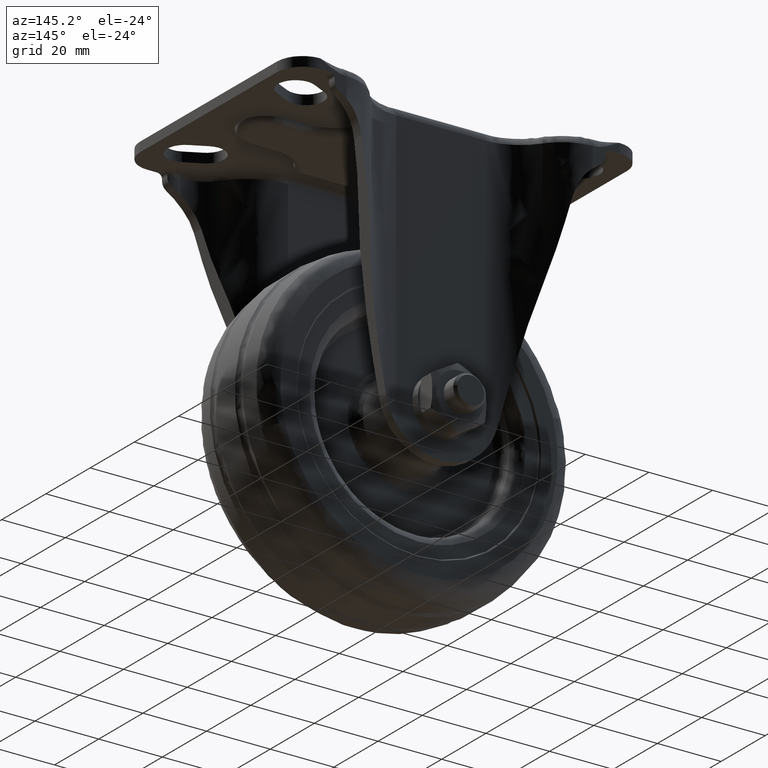
[diagram: clean part render]
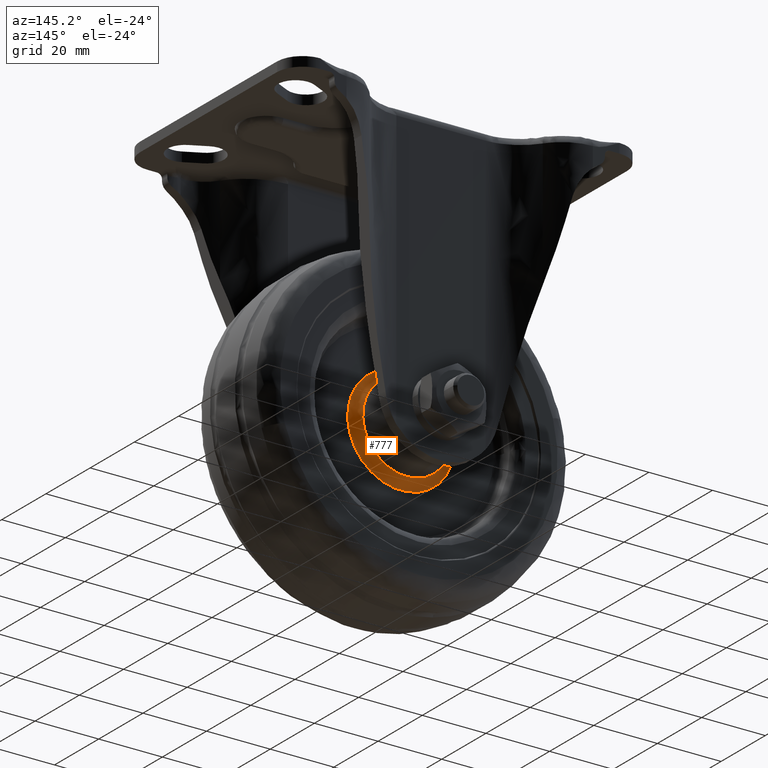
[diagram: same view with one face highlighted and labeled with its STEP entity id]
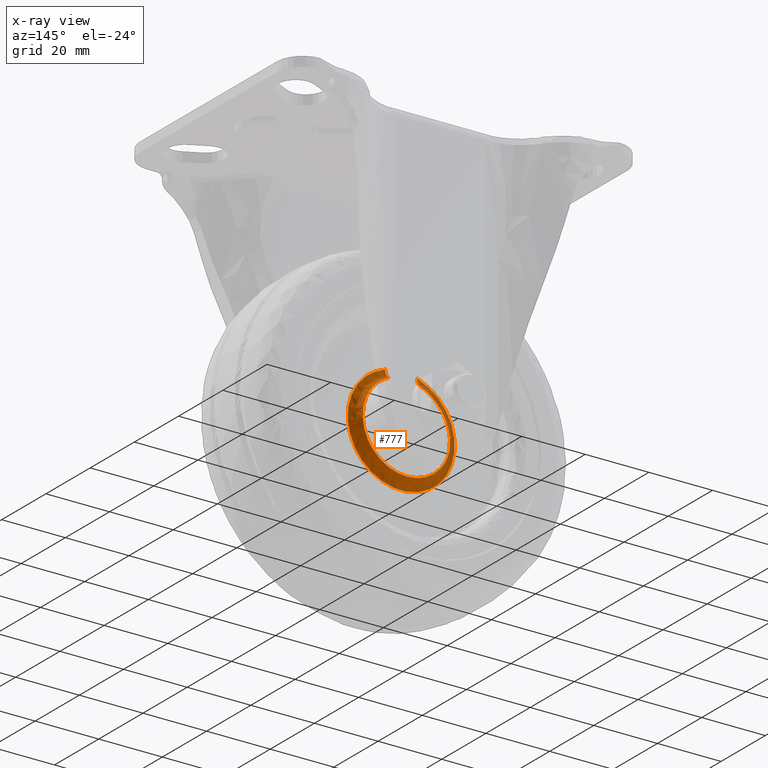
[diagram: x-ray of the same camera — body ghosted, the highlighted face saturated]
A machine part, auxiliary view. The second image highlights one B-rep face of the part: STEP entity #777.
The next image is the same camera in x-ray: the body ghosted, the highlighted face saturated — about 16% of this face is hidden behind the body in this view.
In plain terms, the highlighted face is a freeform B-spline surface patch.
Its self-contained STEP definition (entity closure, byte-faithful):
#569=CARTESIAN_POINT('',(-4.208241807593381,8.006280760442236,16.481419432548567));
#570=CARTESIAN_POINT('',(-4.385973969845072,8.006280760442236,16.431890667955148));
#571=CARTESIAN_POINT('',(-18.859627438471801,8.006280760442236,12.398506015608566));
#572=CARTESIAN_POINT('',(-16.849371815837227,8.006280760442236,-2.303814948342509));
#573=CARTESIAN_POINT('',(-14.839116193202653,8.006280760442236,-17.006135912293573));
#574=CARTESIAN_POINT('',(-2.082583E-015,8.006280760442236,-17.006135912293583));
#575=CARTESIAN_POINT('',(14.839116193202653,8.006280760442236,-17.006135912293587));
#576=CARTESIAN_POINT('',(16.849371815837227,8.006280760442236,-2.303814948342519));
#577=CARTESIAN_POINT('',(18.859627438471801,8.006280760442236,12.398506015608561));
#578=CARTESIAN_POINT('',(4.385973969845074,8.006280760442236,16.431890667955148));
#579=CARTESIAN_POINT('',(4.208241807593381,8.006280760442236,16.481419432548577));
#580=CARTESIAN_POINT('',(-3.477263548884142,7.814831864009457,13.618572195895904));
#581=CARTESIAN_POINT('',(-3.624123353410347,7.814831864009459,13.577646656058533));
#582=CARTESIAN_POINT('',(-15.583680319652821,7.814831864009456,10.244867297960230));
#583=CARTESIAN_POINT('',(-13.922609278555937,7.814831864009458,-1.903637257955260));
#584=CARTESIAN_POINT('',(-12.261538237459037,7.814831864009456,-14.052141813870747));
#585=CARTESIAN_POINT('',(-1.720835E-015,7.814831864009458,-14.052141813870755));
#586=CARTESIAN_POINT('',(12.261538237459034,7.814831864009456,-14.052141813870753));
#587=CARTESIAN_POINT('',(13.922609278555932,7.814831864009458,-1.903637257955269));
#588=CARTESIAN_POINT('',(15.583680319652824,7.814831864009456,10.244867297960225));
#589=CARTESIAN_POINT('',(3.624123353410349,7.814831864009458,13.577646656058528));
#590=CARTESIAN_POINT('',(3.477263548884142,7.814831864009459,13.618572195895904));
#591=CARTESIAN_POINT('',(-3.420128879744514,10.766005135978872,13.394806539784220));
#592=CARTESIAN_POINT('',(-3.564575641306459,10.766005135978872,13.354553444570362));
#593=CARTESIAN_POINT('',(-15.327625980795817,10.766005135978871,10.076534746187205));
#594=CARTESIAN_POINT('',(-13.693847879395996,10.766005135978872,-1.872358598617691));
#595=CARTESIAN_POINT('',(-12.060069777996157,10.766005135978871,-13.821251943422586));
#596=CARTESIAN_POINT('',(-1.692560E-015,10.766005135978872,-13.821251943422594));
#597=CARTESIAN_POINT('',(12.060069777996157,10.766005135978871,-13.821251943422590));
#598=CARTESIAN_POINT('',(13.693847879395996,10.766005135978872,-1.872358598617701));
#599=CARTESIAN_POINT('',(15.327625980795817,10.766005135978871,10.076534746187201));
#600=CARTESIAN_POINT('',(3.564575641306460,10.766005135978872,13.354553444570362));
#601=CARTESIAN_POINT('',(3.420128879744515,10.766005135978871,13.394806539784231));
#609=(BOUNDED_SURFACE()B_SPLINE_SURFACE(2,2,((#569,#580,#591),(#570,#581,#592),(#571,#582,#593),(#572,#583,#594),(#573,#584,#595),(#574,#585,#596),(#575,#586,#597),(#576,#587,#598),(#577,#588,#599),(#578,#589,#600),(#579,#590,#601)),.UNSPECIFIED.,.F.,.F.,.U.)B_SPLINE_SURFACE_WITH_KNOTS((3,1,2,2,2,1,3),(3,3),(0.0,0.426100916373233,25.931937540321542,51.437774164269847,76.943610788218152,102.449447412166510,102.875548328539690),(0.0,4.924340877950315),.UNSPECIFIED.)GEOMETRIC_REPRESENTATION_ITEM()RATIONAL_B_SPLINE_SURFACE(((0.925006459965438,0.659513698737077,0.928047433128488),(0.921228094779907,0.656819789335858,0.924256646508484),(0.691281792787238,0.492872030372355,0.693554392461894),(0.917449729594376,0.654125879934640,0.920465859888481),(0.691281792787238,0.492872030372355,0.693554392461894),(0.917449729594376,0.654125879934640,0.920465859888481),(0.691281792787238,0.492872030372355,0.693554392461894),(0.917449729594376,0.654125879934640,0.920465859888481),(0.691281792787238,0.492872030372355,0.693554392461894),(0.921228094779907,0.656819789335858,0.924256646508484),(0.925006459965438,0.659513698737077,0.928047433128488)))REPRESENTATION_ITEM('')SURFACE());
#610=CARTESIAN_POINT('',(-5.0,10.573671367128719,12.908016292278960));
#611=VERTEX_POINT('',#610);
#612=CARTESIAN_POINT('',(-10.807057311222660,10.573671367128350,-8.650089707280159));
#613=VERTEX_POINT('',#612);
#614=CARTESIAN_POINT('',(-4.999999999999997,10.573671367128719,12.908016292278971));
#615=CARTESIAN_POINT('',(-15.718890127530329,10.573671367128718,8.755985287642139));
#616=CARTESIAN_POINT('',(-13.606922054357060,10.573671367128719,-2.543287161831303));
#617=CARTESIAN_POINT('',(-12.970753688048202,10.573671367128718,-5.946861195912104));
#618=CARTESIAN_POINT('',(-10.807057311222623,10.573671367128716,-8.650089707280131));
#626=(BOUNDED_CURVE()B_SPLINE_CURVE(2,(#614,#615,#616,#617,#618),.UNSPECIFIED.,.F.,.U.)B_SPLINE_CURVE_WITH_KNOTS((3,2,3),(0.0,0.250000000000000,0.339776084298927),.UNSPECIFIED.)CURVE()GEOMETRIC_REPRESENTATION_ITEM()RATIONAL_B_SPLINE_CURVE((1.0,0.769327633555223,1.0,0.917164552738482,0.893822242247280))REPRESENTATION_ITEM(''));
#627=EDGE_CURVE('',#611,#613,#626,.T.);
#628=ORIENTED_EDGE('',*,*,#627,.T.);
#629=CARTESIAN_POINT('',(10.807057311227860,10.573671367127501,8.650105707273827));
#630=VERTEX_POINT('',#629);
#631=CARTESIAN_POINT('',(-10.807057311222664,10.573671367128352,-8.650089707280159));
#632=CARTESIAN_POINT('',(-6.650942402376769,10.573671367128355,-13.842559611304793));
#633=CARTESIAN_POINT('',(-7.873011E-015,10.573671367128201,-13.842559611304759));
#634=CARTESIAN_POINT('',(11.494953981183821,10.573671367127917,-13.842559611304718));
#635=CARTESIAN_POINT('',(13.606922054357160,10.573671367127650,-2.543287161831241));
#636=CARTESIAN_POINT('',(14.772979479989413,10.573671367127501,3.695254372631172));
#637=CARTESIAN_POINT('',(10.807057311227862,10.573671367127503,8.650105707273827));
#645=(BOUNDED_CURVE()B_SPLINE_CURVE(2,(#631,#632,#633,#634,#635,#636,#637),.UNSPECIFIED.,.F.,.U.)B_SPLINE_CURVE_WITH_KNOTS((3,2,2,3),(0.339776084298927,0.500000000000000,0.750000000000000,0.903933134558067),.UNSPECIFIED.)CURVE()GEOMETRIC_REPRESENTATION_ITEM()RATIONAL_B_SPLINE_CURVE((0.893822242247280,0.852163080816740,1.0,0.769327633555223,1.0,0.857967518308913,0.890843077543988))REPRESENTATION_ITEM(''));
#646=EDGE_CURVE('',#613,#630,#645,.T.);
#647=ORIENTED_EDGE('',*,*,#646,.T.);
#648=CARTESIAN_POINT('',(5.0,10.573671367128719,12.908016292278960));
#649=VERTEX_POINT('',#648);
#650=CARTESIAN_POINT('',(10.807057311227862,10.573671367127503,8.650105707273827));
#651=CARTESIAN_POINT('',(8.477000434482669,10.573671367128110,11.561177819699786));
#652=CARTESIAN_POINT('',(5.0,10.573671367128719,12.908016292278960));
#660=(BOUNDED_CURVE()B_SPLINE_CURVE(2,(#650,#651,#652),.UNSPECIFIED.,.F.,.U.)B_SPLINE_CURVE_WITH_KNOTS((3,3),(0.903933134558067,1.0),.UNSPECIFIED.)CURVE()GEOMETRIC_REPRESENTATION_ITEM()RATIONAL_B_SPLINE_CURVE((0.890843077543988,0.911360115246309,1.0))REPRESENTATION_ITEM(''));
#661=EDGE_CURVE('',#630,#649,#660,.T.);
#662=ORIENTED_EDGE('',*,*,#661,.T.);
#663=CARTESIAN_POINT('',(5.0,8.0,16.051406477737402));
#664=VERTEX_POINT('',#663);
#665=CARTESIAN_POINT('',(5.0,10.573671367128730,12.908016292278990));
#666=CARTESIAN_POINT('',(4.999999999999999,10.392458631741530,12.935915995399951));
#667=CARTESIAN_POINT('',(5.0,10.214475475980761,12.981312196351510));
#668=CARTESIAN_POINT('',(4.999999999999998,9.952432244252542,13.076123291449271));
#669=CARTESIAN_POINT('',(4.999999999999999,9.866854669220324,13.111873131048540));
#670=CARTESIAN_POINT('',(5.000000000000001,9.741369422897163,13.171444352746990));
#671=CARTESIAN_POINT('',(5.0,9.700005467511124,13.192300123328280));
#672=CARTESIAN_POINT('',(5.0,9.618202814483000,13.236001182919210));
#673=CARTESIAN_POINT('',(4.999999999999999,9.577690394608867,13.258893302771840));
#674=CARTESIAN_POINT('',(4.999999999999999,9.378859931261049,13.377468288791260));
#675=CARTESIAN_POINT('',(5.000000000000001,9.230894177773894,13.485705834013411));
#676=CARTESIAN_POINT('',(4.999999999999999,9.024460295187108,13.666762626704671));
#677=CARTESIAN_POINT('',(4.999999999999999,8.958252850653151,13.730253403159010));
#678=CARTESIAN_POINT('',(5.000000000000001,8.831058545678003,13.863527510984570));
#679=CARTESIAN_POINT('',(5.0,8.769811910411997,13.933665818472340));
#680=CARTESIAN_POINT('',(5.000000000000002,8.596898691114209,14.150120608958810));
#681=CARTESIAN_POINT('',(5.0,8.495387407805287,14.302791141223810));
#682=CARTESIAN_POINT('',(4.999999999999998,8.362849899530827,14.543790572034609));
#683=CARTESIAN_POINT('',(4.999999999999998,8.321979947865881,14.626135409243410));
#684=CARTESIAN_POINT('',(4.999999999999997,8.246949410363291,14.794903747958459));
#685=CARTESIAN_POINT('',(4.999999999999999,8.212784726358704,14.881462101575080));
#686=CARTESIAN_POINT('',(5.0,8.122197577945112,15.142548872938480));
#687=CARTESIAN_POINT('',(5.000000000000001,8.076854476398838,15.319983214730190));
#688=CARTESIAN_POINT('',(5.0,8.030997203127880,15.591106326164910));
#689=CARTESIAN_POINT('',(5.0,8.019425650040013,15.682314077488391));
#690=CARTESIAN_POINT('',(5.0,8.007783422095203,15.820408039912500));
#691=CARTESIAN_POINT('',(5.0,8.004853491606177,15.866763642716800));
#692=CARTESIAN_POINT('',(4.999999999999999,8.000964838455374,15.959252521887869));
#693=CARTESIAN_POINT('',(5.0,7.999999999999976,16.005384760992619));
#694=CARTESIAN_POINT('',(5.0,7.999999999999978,16.051406477737402));
#695=B_SPLINE_CURVE_WITH_KNOTS('',3,(#665,#666,#667,#668,#669,#670,#671,#672,#673,#674,#675,#676,#677,#678,#679,#680,#681,#682,#683,#684,#685,#686,#687,#688,#689,#690,#691,#692,#693,#694),.UNSPECIFIED.,.F.,.U.,(4,2,2,2,2,2,2,2,2,2,2,2,2,2,4),(0.0,0.124999999999996,0.187499999999994,0.218749999999993,0.249999999999992,0.374999999999991,0.437499999999992,0.499999999999993,0.624999999999994,0.687499999999994,0.749999999999995,0.874999999999996,0.937499999999997,0.968749999999998,1.0),.UNSPECIFIED.);
#696=EDGE_CURVE('',#649,#664,#695,.T.);
#697=ORIENTED_EDGE('',*,*,#696,.T.);
#698=CARTESIAN_POINT('',(-5.0,8.0,16.051406477737402));
#699=VERTEX_POINT('',#698);
#700=CARTESIAN_POINT('',(-5.0,8.0,16.051406477737402));
#701=CARTESIAN_POINT('',(-5.830879580417482,8.000000000000007,15.792645241937530));
#702=CARTESIAN_POINT('',(-7.452314195347253,8.000000000000004,15.145652148073930));
#703=CARTESIAN_POINT('',(-9.866172231356719,7.999999999999991,13.715505384602650));
#704=CARTESIAN_POINT('',(-11.765321920142270,7.999999999999994,12.093501331199970));
#705=CARTESIAN_POINT('',(-13.447446908723149,8.000000000000030,10.174565978503450));
#706=CARTESIAN_POINT('',(-14.967004606521041,7.999999999999972,7.888968912339227));
#707=CARTESIAN_POINT('',(-16.163235233392999,8.000000000000108,4.999560563699025));
#708=CARTESIAN_POINT('',(-16.740957306334309,7.999999999999797,2.125285732677760));
#709=CARTESIAN_POINT('',(-16.859141727732869,8.000000000000355,-0.301499728008156));
#710=CARTESIAN_POINT('',(-16.659523197579521,7.999999999999587,-2.660413790846179));
#711=CARTESIAN_POINT('',(-16.136661037939049,8.000000000000124,-4.907251237731929));
#712=CARTESIAN_POINT('',(-15.197486883554600,7.999999999999955,-7.348489334201396));
#713=CARTESIAN_POINT('',(-14.013261877363281,8.000000000000133,-9.404449345322814));
#714=CARTESIAN_POINT('',(-12.307188868444101,7.999999999999669,-11.547678209950970));
#715=CARTESIAN_POINT('',(-10.431873823596650,8.000000000000149,-13.290263610909790));
#716=CARTESIAN_POINT('',(-7.871022385686198,7.999999999999930,-14.956386441801710));
#717=CARTESIAN_POINT('',(-5.108300429087904,8.000000000000020,-16.122268423693409));
#718=CARTESIAN_POINT('',(-2.179041338487911,7.999999999999999,-16.748846336401350));
#719=CARTESIAN_POINT('',(0.312440493970403,8.0,-16.859384465981059));
#720=CARTESIAN_POINT('',(2.668885042486320,7.999999999999998,-16.649733129143289));
#721=CARTESIAN_POINT('',(5.101752527892094,7.999999999999996,-16.101062439141081));
#722=CARTESIAN_POINT('',(7.932191919422404,8.000000000000023,-14.943563836371490));
#723=CARTESIAN_POINT('',(10.542412180895850,7.999999999999957,-13.224661163827729));
#724=CARTESIAN_POINT('',(12.779412909887251,8.000000000000178,-11.051371385574740));
#725=CARTESIAN_POINT('',(14.649428386178840,7.999999999999274,-8.475864285374771));
#726=CARTESIAN_POINT('',(15.948188286806920,8.000000000001968,-5.631098452189949));
#727=CARTESIAN_POINT('',(16.628963926792601,7.999999999999175,-2.845004841143759));
#728=CARTESIAN_POINT('',(16.854762736586160,8.000000000000169,-0.488473262706922));
#729=CARTESIAN_POINT('',(16.763498983168489,7.999999999999988,1.939469394198029));
#730=CARTESIAN_POINT('',(16.240883202494970,8.000000000000007,4.697381746584208));
#731=CARTESIAN_POINT('',(15.178122705170541,7.999999999999996,7.434485770632091));
#732=CARTESIAN_POINT('',(13.684245669709110,8.0,9.882817395994662));
#733=CARTESIAN_POINT('',(11.829816046441790,8.0,12.070751804222761));
#734=CARTESIAN_POINT('',(9.710188263896804,8.0,13.820859475633990));
#735=CARTESIAN_POINT('',(7.336483433991420,8.0,15.191837623416269));
#736=CARTESIAN_POINT('',(5.830882134248977,8.0,15.792650439783500));
#737=CARTESIAN_POINT('',(5.0,8.0,16.051406477737402));
#738=B_SPLINE_CURVE_WITH_KNOTS('',3,(#700,#701,#702,#703,#704,#705,#706,#707,#708,#709,#710,#711,#712,#713,#714,#715,#716,#717,#718,#719,#720,#721,#722,#723,#724,#725,#726,#727,#728,#729,#730,#731,#732,#733,#734,#735,#736,#737),.UNSPECIFIED.,.F.,.U.,(4,1,1,1,1,1,1,1,1,1,1,1,1,1,1,1,1,1,1,1,1,1,1,1,1,1,1,1,1,1,1,1,1,1,1,4),(0.000000210871136,2.610727732022582,5.221533677717005,8.391819440560425,10.070202388372779,12.867507016665430,16.597245252060048,19.394539872574679,21.632386175546699,23.870139122112992,26.480894423949721,28.532239395351379,31.702504654534170,33.567372931359429,36.737639550038459,39.348447596160348,42.705188282271500,45.689004435100983,48.299695782156853,50.164525179260913,52.775372895647337,55.759137525857170,59.302370423763051,62.099670608985527,65.083436750605046,68.813202304785591,71.423944294001885,73.661678482534967,75.899521673808238,78.696820497176788,82.053580910996388,84.664400908013491,87.275218505081341,90.631965980168602,92.869820493892377,95.480545488293117),.UNSPECIFIED.);
#739=EDGE_CURVE('',#699,#664,#738,.T.);
#740=ORIENTED_EDGE('',*,*,#739,.F.);
#741=CARTESIAN_POINT('',(-5.0,7.999999999999998,16.051406477737402));
#742=CARTESIAN_POINT('',(-5.000000000000001,8.0,15.959724798991450));
#743=CARTESIAN_POINT('',(-4.999999999999999,8.003823558311963,15.867865071609311));
#744=CARTESIAN_POINT('',(-5.000000000000001,8.019261389504859,15.683782832759940));
#745=CARTESIAN_POINT('',(-5.0,8.030938212352476,15.591429795933960));
#746=CARTESIAN_POINT('',(-4.999999999999999,8.077048340466302,15.318887695598571));
#747=CARTESIAN_POINT('',(-5.0,8.122553666206414,15.141499432327940));
#748=CARTESIAN_POINT('',(-5.0,8.212673793768225,14.881793408526001));
#749=CARTESIAN_POINT('',(-5.0,8.246378274820849,14.796293514067120));
#750=CARTESIAN_POINT('',(-5.000000000000001,8.321330114263169,14.627493701336491));
#751=CARTESIAN_POINT('',(-5.0,8.362693207022643,14.544068282961890));
#752=CARTESIAN_POINT('',(-4.999999999999999,8.495878246338078,14.301913061386180));
#753=CARTESIAN_POINT('',(-4.999999999999999,8.597362184877595,14.149625053549419));
#754=CARTESIAN_POINT('',(-4.999999999999999,8.768724466160329,13.934985084340310));
#755=CARTESIAN_POINT('',(-4.999999999999999,8.829053177629721,13.865750475061340));
#756=CARTESIAN_POINT('',(-5.0,8.956385443718265,13.732091975777751));
#757=CARTESIAN_POINT('',(-5.0,9.023586763622586,13.667540420714740));
#758=CARTESIAN_POINT('',(-5.0,9.231984881465390,13.484725973548811));
#759=CARTESIAN_POINT('',(-5.000000000000001,9.380883986022486,13.376068896860939));
#760=CARTESIAN_POINT('',(-5.000000000000001,9.580045147271418,13.257538837133740));
#761=CARTESIAN_POINT('',(-5.0,9.620553050352813,13.234701505277030));
#762=CARTESIAN_POINT('',(-4.999999999999999,9.702149774631369,13.191201201384480));
#763=CARTESIAN_POINT('',(-5.0,9.743329160416769,13.170482066341620));
#764=CARTESIAN_POINT('',(-4.999999999999999,9.868001789388989,13.111394442903540));
#765=CARTESIAN_POINT('',(-5.0,10.037252744697160,13.040784922433691));
#766=CARTESIAN_POINT('',(-5.000000000000001,10.212566047362561,12.986579587539079));
#767=CARTESIAN_POINT('',(-5.000000000000001,10.346389966690820,12.952254561228431));
#768=CARTESIAN_POINT('',(-4.999999999999999,10.391388374206031,12.941869367393490));
#769=CARTESIAN_POINT('',(-5.000000000000001,10.482184912356599,12.923262961049430));
#770=CARTESIAN_POINT('',(-5.0,10.527984184331340,12.915050338941089));
#771=CARTESIAN_POINT('',(-5.0,10.573671367128719,12.908016292278990));
#772=B_SPLINE_CURVE_WITH_KNOTS('',3,(#741,#742,#743,#744,#745,#746,#747,#748,#749,#750,#751,#752,#753,#754,#755,#756,#757,#758,#759,#760,#761,#762,#763,#764,#765,#766,#767,#768,#769,#770,#771),.UNSPECIFIED.,.F.,.U.,(4,2,2,2,2,2,2,2,2,2,2,2,1,2,2,4),(0.0,0.062500000000000,0.125000000000001,0.250000000000000,0.312499999999999,0.374999999999999,0.499999999999997,0.562499999999997,0.624999999999998,0.749999999999997,0.781249999999997,0.812499999999997,0.874999999999998,0.937499999999999,0.968750000000000,1.0),.UNSPECIFIED.);
#773=EDGE_CURVE('',#699,#611,#772,.T.);
#774=ORIENTED_EDGE('',*,*,#773,.T.);
#775=EDGE_LOOP('',(#628,#647,#662,#697,#740,#774));
#776=FACE_OUTER_BOUND('',#775,.T.);
#777=ADVANCED_FACE('',(#776),#609,.F.);